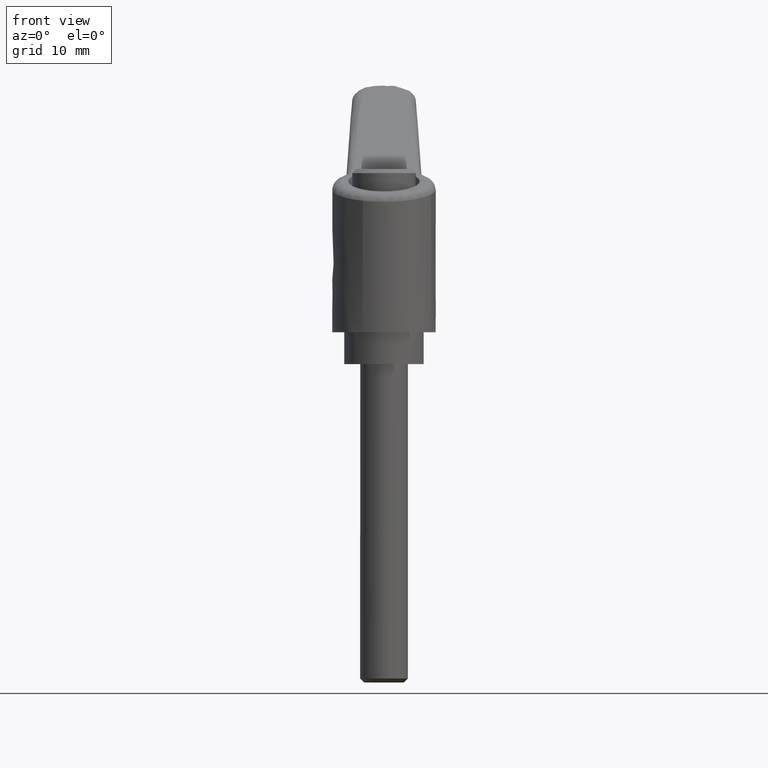
[diagram: clean part render]
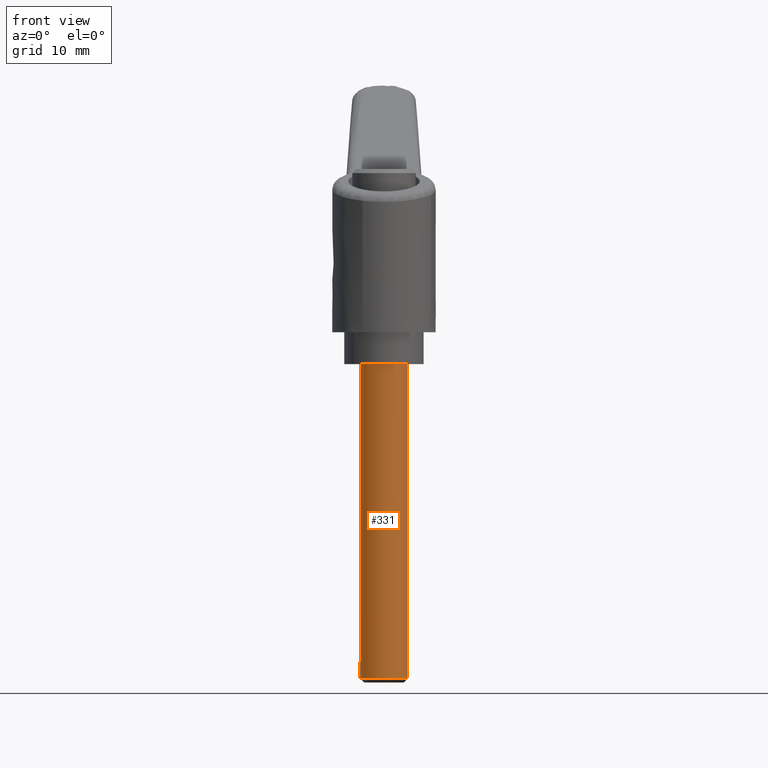
[diagram: same view with one face highlighted and labeled with its STEP entity id]
A machine part, front view. The second image highlights one B-rep face of the part: STEP entity #331.
In plain terms, the highlighted face is a freeform B-spline surface patch.
Its self-contained STEP definition (entity closure, byte-faithful):
#62=CARTESIAN_POINT('',(-0.549370887254659,2.949269677139923,-39.499999999956657));
#63=VERTEX_POINT('',#62);
#64=CARTESIAN_POINT('',(-3.0,0.0,-39.500000000000000));
#65=VERTEX_POINT('',#64);
#66=CARTESIAN_POINT('',(-0.549370887254659,2.949269677139923,-39.499999999956664));
#67=CARTESIAN_POINT('',(-3.0,2.492782329959816,-39.500000000000000));
#68=CARTESIAN_POINT('',(-3.0,0.0,-39.500000000000000));
#76=(BOUNDED_CURVE()B_SPLINE_CURVE(2,(#66,#67,#68),.UNSPECIFIED.,.F.,.U.)B_SPLINE_CURVE_WITH_KNOTS((3,3),(0.281445263753256,0.500000000000000),.UNSPECIFIED.)CURVE()GEOMETRIC_REPRESENTATION_ITEM()RATIONAL_B_SPLINE_CURVE((0.935586817166524,0.743947199255064,1.0))REPRESENTATION_ITEM(''));
#77=EDGE_CURVE('',#63,#65,#76,.T.);
#125=CARTESIAN_POINT('',(-0.183145618797921,-2.994404395253775,-39.500000000000000));
#126=VERTEX_POINT('',#125);
#142=CARTESIAN_POINT('',(-3.0,0.0,-39.500000000000000));
#143=CARTESIAN_POINT('',(-3.0,-2.822118200351944,-39.499999999999986));
#144=CARTESIAN_POINT('',(-0.183145618797921,-2.994404395253775,-39.500000000000007));
#152=(BOUNDED_CURVE()B_SPLINE_CURVE(2,(#142,#143,#144),.UNSPECIFIED.,.F.,.U.)B_SPLINE_CURVE_WITH_KNOTS((3,3),(0.500000000000000,0.739332962219685),.UNSPECIFIED.)CURVE()GEOMETRIC_REPRESENTATION_ITEM()RATIONAL_B_SPLINE_CURVE((1.0,0.719603993309272,0.976072041625444))REPRESENTATION_ITEM(''));
#153=EDGE_CURVE('',#65,#126,#152,.T.);
#180=CARTESIAN_POINT('',(0.354102704123911,2.979028579072737,-39.499999999999993));
#181=VERTEX_POINT('',#180);
#182=CARTESIAN_POINT('',(0.354102704123911,2.979028579072736,-39.499999999999993));
#183=CARTESIAN_POINT('',(0.177672359110991,3.000000000000000,-39.500000000000007));
#184=CARTESIAN_POINT('',(0.0,3.0,-39.500000000000000));
#185=CARTESIAN_POINT('',(-0.277027728155336,3.000000000000000,-39.500000000000000));
#186=CARTESIAN_POINT('',(-0.549370887254659,2.949269677139923,-39.499999999956664));
#194=(BOUNDED_CURVE()B_SPLINE_CURVE(2,(#182,#183,#184,#185,#186),.UNSPECIFIED.,.F.,.U.)B_SPLINE_CURVE_WITH_KNOTS((3,2,3),(0.229562473498212,0.250000000000000,0.281445263753256),.UNSPECIFIED.)CURVE()GEOMETRIC_REPRESENTATION_ITEM()RATIONAL_B_SPLINE_CURVE((0.956026754153719,0.976055948313225,1.0,0.963159581931484,0.935586817166525))REPRESENTATION_ITEM(''));
#195=EDGE_CURVE('',#181,#63,#194,.T.);
#260=CARTESIAN_POINT('',(0.354102703970275,2.979028579091000,-40.487500000000018));
#261=CARTESIAN_POINT('',(0.268844185913933,2.989162846345817,-40.487500000000011));
#262=CARTESIAN_POINT('',(0.183145618604571,2.994404395265600,-40.487500000000011));
#263=CARTESIAN_POINT('',(-2.811258776661029,3.177550013870171,-40.487500000000011));
#264=CARTESIAN_POINT('',(-2.994404395265600,0.183145618604571,-40.487500000000011));
#265=CARTESIAN_POINT('',(-3.177550013870171,-2.811258776661029,-40.487500000000011));
#266=CARTESIAN_POINT('',(-0.183145618604571,-2.994404395265600,-40.487500000000011));
#267=CARTESIAN_POINT('',(0.354102703970275,2.979028579091000,1.012187500000003));
#268=CARTESIAN_POINT('',(0.268844185913933,2.989162846345817,1.012187500000004));
#269=CARTESIAN_POINT('',(0.183145618604571,2.994404395265600,1.012187500000003));
#270=CARTESIAN_POINT('',(-2.811258776661029,3.177550013870171,1.012187500000003));
#271=CARTESIAN_POINT('',(-2.994404395265600,0.183145618604571,1.012187500000003));
#272=CARTESIAN_POINT('',(-3.177550013870171,-2.811258776661029,1.012187500000003));
#273=CARTESIAN_POINT('',(-0.183145618604571,-2.994404395265600,1.012187500000003));
#281=(BOUNDED_SURFACE()B_SPLINE_SURFACE(2,1,((#260,#267),(#261,#268),(#262,#269),(#263,#270),(#264,#271),(#265,#272),(#266,#273)),.UNSPECIFIED.,.F.,.F.,.U.)B_SPLINE_SURFACE_WITH_KNOTS((3,2,2,3),(2,2),(0.0,0.198822509939086,5.169385258416225,10.139948006893370),(0.0,41.499687500000022),.UNSPECIFIED.)GEOMETRIC_REPRESENTATION_ITEM()RATIONAL_B_SPLINE_SURFACE(((0.977505800795127,0.977505800795127),(0.988284271247462,0.988284271247462),(1.0,1.0),(0.707106781186548,0.707106781186548),(1.0,1.0),(0.707106781186548,0.707106781186548),(1.0,1.0)))REPRESENTATION_ITEM('')SURFACE());
#282=ORIENTED_EDGE('',*,*,#195,.T.);
#283=ORIENTED_EDGE('',*,*,#77,.T.);
#284=ORIENTED_EDGE('',*,*,#153,.T.);
#285=CARTESIAN_POINT('',(-0.183145618797921,-2.994404395253775,9.436896E-016));
#286=VERTEX_POINT('',#285);
#287=CARTESIAN_POINT('',(-0.183145618797921,-2.994404395253775,-39.500000000000000));
#288=CARTESIAN_POINT('',(-0.183145618797921,-2.994404395253775,9.436896E-016));
#289=QUASI_UNIFORM_CURVE('',1,(#287,#288),.UNSPECIFIED.,.F.,.U.);
#290=EDGE_CURVE('',#126,#286,#289,.T.);
#291=ORIENTED_EDGE('',*,*,#290,.T.);
#292=CARTESIAN_POINT('',(-3.0,0.0,0.0));
#293=VERTEX_POINT('',#292);
#294=CARTESIAN_POINT('',(-3.0,0.0,0.0));
#295=CARTESIAN_POINT('',(-3.0,-2.822118200351944,0.0));
#296=CARTESIAN_POINT('',(-0.183145618797921,-2.994404395253775,9.436896E-016));
#304=(BOUNDED_CURVE()B_SPLINE_CURVE(2,(#294,#295,#296),.UNSPECIFIED.,.F.,.U.)B_SPLINE_CURVE_WITH_KNOTS((3,3),(0.500000000000000,0.739332962219685),.UNSPECIFIED.)CURVE()GEOMETRIC_REPRESENTATION_ITEM()RATIONAL_B_SPLINE_CURVE((1.0,0.719603993309272,0.976072041625444))REPRESENTATION_ITEM(''));
#305=EDGE_CURVE('',#293,#286,#304,.T.);
#306=ORIENTED_EDGE('',*,*,#305,.F.);
#307=CARTESIAN_POINT('',(0.354102704123911,2.979028579072737,9.086170E-016));
#308=VERTEX_POINT('',#307);
#309=CARTESIAN_POINT('',(0.354102704123911,2.979028579072736,9.086170E-016));
#310=CARTESIAN_POINT('',(0.177672359110991,3.000000000000000,0.0));
#311=CARTESIAN_POINT('',(0.0,3.0,0.0));
#312=CARTESIAN_POINT('',(-3.0,3.0,0.0));
#313=CARTESIAN_POINT('',(-3.0,0.0,0.0));
#321=(BOUNDED_CURVE()B_SPLINE_CURVE(2,(#309,#310,#311,#312,#313),.UNSPECIFIED.,.F.,.U.)B_SPLINE_CURVE_WITH_KNOTS((3,2,3),(0.229562473498212,0.250000000000000,0.500000000000000),.UNSPECIFIED.)CURVE()GEOMETRIC_REPRESENTATION_ITEM()RATIONAL_B_SPLINE_CURVE((0.956026754153719,0.976055948313225,1.0,0.707106781186548,1.0))REPRESENTATION_ITEM(''));
#322=EDGE_CURVE('',#308,#293,#321,.T.);
#323=ORIENTED_EDGE('',*,*,#322,.F.);
#324=CARTESIAN_POINT('',(0.354102704123911,2.979028579072737,-39.499999999999993));
#325=CARTESIAN_POINT('',(0.354102704123911,2.979028579072737,9.086170E-016));
#326=QUASI_UNIFORM_CURVE('',1,(#324,#325),.UNSPECIFIED.,.F.,.U.);
#327=EDGE_CURVE('',#181,#308,#326,.T.);
#328=ORIENTED_EDGE('',*,*,#327,.F.);
#329=EDGE_LOOP('',(#282,#283,#284,#291,#306,#323,#328));
#330=FACE_OUTER_BOUND('',#329,.T.);
#331=ADVANCED_FACE('',(#330),#281,.T.);